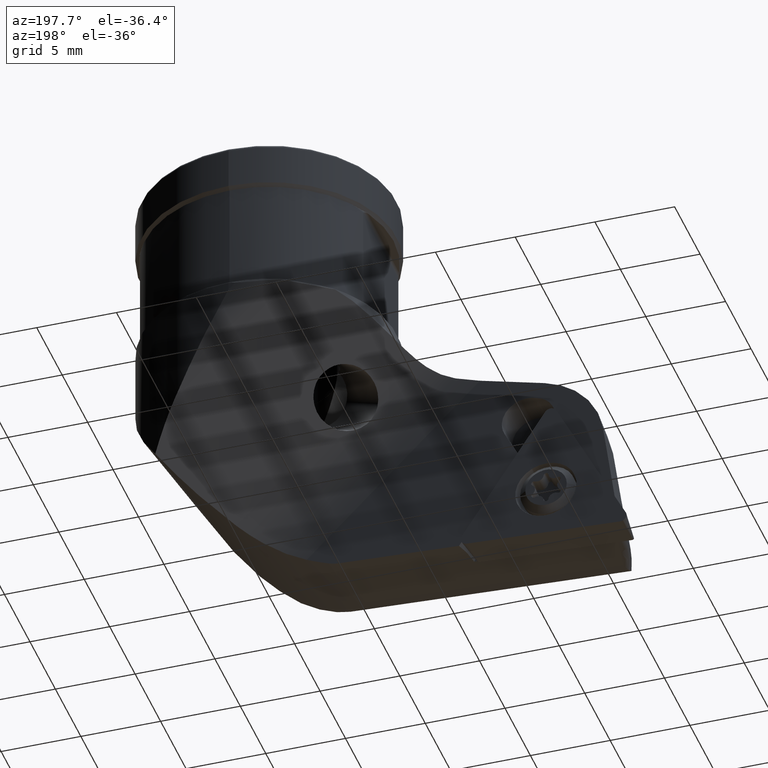
[diagram: clean part render]
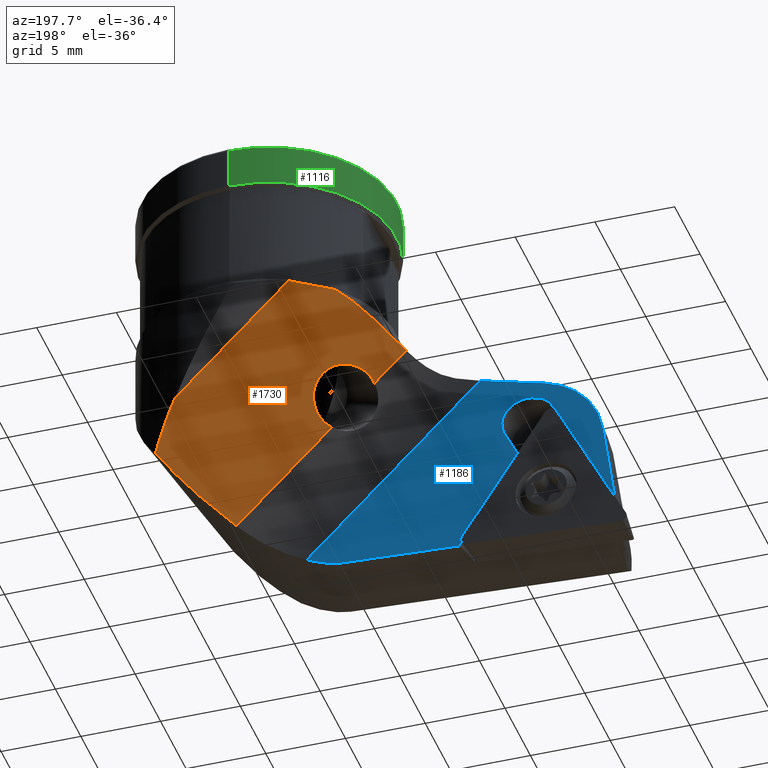
[diagram: same view with three faces highlighted in distinct colors, each labeled with its STEP entity id]
A machine part, auxiliary view with three faces highlighted in distinct colors.
Their STEP definitions:

[orange] entity #1730 — the highlighted planar face has unit normal (0.5, -0.7071, 0.5).
#820=VERTEX_POINT('NONE',#2182);
#854=EDGE_CURVE('NONE',#1704,#950,#2219,.T.);
#918=EDGE_CURVE('NONE',#1294,#1188,#2290,.T.);
#950=VERTEX_POINT('NONE',#2325);
#964=EDGE_CURVE('NONE',#820,#1304,#2340,.T.);
#1112=VERTEX_POINT('NONE',#2503);
#1188=VERTEX_POINT('NONE',#2588);
#1230=EDGE_CURVE('NONE',#1188,#1112,#2632,.T.);
#1294=VERTEX_POINT('NONE',#2699);
#1304=VERTEX_POINT('NONE',#2711);
#1316=EDGE_CURVE('NONE',#1304,#1642,#2724,.F.);
#1498=EDGE_CURVE('NONE',#950,#1528,#2925,.T.);
#1516=EDGE_CURVE('NONE',#1704,#820,#2944,.F.);
#1524=EDGE_CURVE('NONE',#1642,#1294,#2954,.F.);
#1528=VERTEX_POINT('NONE',#2958);
#1642=VERTEX_POINT('NONE',#3084);
#1704=VERTEX_POINT('NONE',#3152);
#1730=ADVANCED_FACE('NONE',(#3178),#3179,.F.);
#1942=EDGE_CURVE('NONE',#1528,#1112,#3411,.F.);
#2182=CARTESIAN_POINT('',(-7.06967052858153,1.45735931288074,-14.4270898869831));
#2219=B_SPLINE_CURVE_WITH_KNOTS('',3,(#3842,#3843,#3844,#3845,#3846,#3847,#3848,#3849,#3850,#3851,#3852,#3853,#3854,#3855,#3856,#3857,#3858,#3859,#3860,#3861),.UNSPECIFIED.,.F.,.F.,(4,2,2,2,2,2,2,2,2,4),(65.4229489903034,67.4327504356294,68.99945963606,69.9009318936082,70.8024041511565,71.490980823442,72.1795574957274,73.3606437714883,73.9511869093688,74.5417300472492),.UNSPECIFIED.);
#2290=ELLIPSE('',#4030,26.8747794973603,18.8595471869717);
#2325=CARTESIAN_POINT('',(-5.86805815178063,5.43745285288258,-9.99999999999994));
#2340=ELLIPSE('',#4115,2.01180231808344,2.0);
#2503=CARTESIAN_POINT('',(3.64510583720193,7.12132034355964,-17.1318157464279));
#2588=CARTESIAN_POINT('',(5.20100894154422,6.07861053119683,-20.1623332090332));
#2632=ELLIPSE('',#5239,15.9999999999999,8.0);
#2699=CARTESIAN_POINT('',(1.58683098823262,1.45735931288074,-23.0835914037973));
#2711=CARTESIAN_POINT('',(-5.30124889370051,3.12243949869506,-13.8407325406468));
#2724=ELLIPSE('',#5378,2.01180231808344,2.0);
#2925=B_SPLINE_CURVE_WITH_KNOTS('',3,(#6127,#6128,#6129,#6130),.UNSPECIFIED.,.F.,.F.,(4,4),(0.0,1.0),.UNSPECIFIED.);
#2944=LINE('',#6156,#6157);
#2954=LINE('',#6168,#6169);
#2958=CARTESIAN_POINT('',(-3.48670990922596,7.12132034355963,-10.0));
#3084=CARTESIAN_POINT('',(-4.38493828708281,1.45735931288074,-17.1118221284819));
#3152=CARTESIAN_POINT('',(-9.05321237803977,1.45735931288074,-12.4435480375249));
#3178=FACE_OUTER_BOUND('',#7010,.T.);
#3179=PLANE('',#7011);
#3411=LINE('',#7379,#7380);
#3842=CARTESIAN_POINT('',(-10.383141903396,-0.19448304017857,-13.4496763707674));
#3843=CARTESIAN_POINT('',(-9.93441048857037,0.314005965214961,-13.1792957378479));
#3844=CARTESIAN_POINT('',(-9.52526087179147,0.833559424524431,-12.8536858060935));
#3845=CARTESIAN_POINT('',(-8.88747764583295,1.6754813474926,-12.3008116301312));
#3846=CARTESIAN_POINT('',(-8.56322171617996,2.1184768091129,-11.998577369891));
#3847=CARTESIAN_POINT('',(-8.13665676202135,2.70003035806783,-11.6027014078714));
#3848=CARTESIAN_POINT('',(-7.96497703572257,2.93367151079703,-11.4439626472521));
#3849=CARTESIAN_POINT('',(-7.61566685607914,3.40063454037405,-11.1328873773408));
#3850=CARTESIAN_POINT('',(-7.43773282882626,3.63394356441308,-10.9808726185737));
#3851=CARTESIAN_POINT('',(-7.14392532556971,4.00754867526958,-10.7463227070851));
#3852=CARTESIAN_POINT('',(-7.00105471576019,4.18523126918362,-10.6379121827837));
#3853=CARTESIAN_POINT('',(-6.70544271456577,4.53909502579057,-10.4330852601523));
#3854=CARTESIAN_POINT('',(-6.55250835407092,4.7152489301808,-10.3369003799935));
#3855=CARTESIAN_POINT('',(-6.16081598442486,5.14744280250935,-10.117378313818));
#3856=CARTESIAN_POINT('',(-5.87333033859738,5.44326434074188,-9.98650912823499));
#3857=CARTESIAN_POINT('',(-5.40837565402224,5.86661229454606,-9.85275939493737));
#3858=CARTESIAN_POINT('',(-5.24781182098396,6.00445683995575,-9.81838160235811));
#3859=CARTESIAN_POINT('',(-4.92316954768279,6.26585873362661,-9.77334577239995));
#3860=CARTESIAN_POINT('',(-4.75908232326074,6.38940852638197,-9.76270720427899));
#3861=CARTESIAN_POINT('',(-4.59835683893751,6.50305860625642,-9.76270720427898));
#4030=AXIS2_PLACEMENT_3D('',#7877,#7878,#7879);
#4115=AXIS2_PLACEMENT_3D('',#7938,#7939,#7940);
#5239=AXIS2_PLACEMENT_3D('',#8297,#8298,#8299);
#5378=AXIS2_PLACEMENT_3D('',#8399,#8400,#8401);
#6127=CARTESIAN_POINT('',(-5.86805815178062,5.43745285288258,-9.99999999999994));
#6128=CARTESIAN_POINT('',(-5.0742754042624,5.99874201644161,-9.99999999999994));
#6129=CARTESIAN_POINT('',(-4.28049265674418,6.56003118000064,-9.99999999999993));
#6130=CARTESIAN_POINT('',(-3.48670990922595,7.12132034355963,-10.0));
#6156=CARTESIAN_POINT('',(-21.9483802088309,1.45735931288073,0.451619793266256));
#6157=VECTOR('',#8643,1.0);
#6168=CARTESIAN_POINT('',(-21.9483802088309,1.45735931288073,0.451619793266256));
#6169=VECTOR('',#8660,1.0);
#7010=EDGE_LOOP('',(#8904,#8905,#8906,#8907,#8908,#8909,#8910,#8911,#8912));
#7011=AXIS2_PLACEMENT_3D('',#8913,#8914,#8915);
#7379=CARTESIAN_POINT('',(-17.9433549556615,7.12132034355963,4.4566450464356));
#7380=VECTOR('',#9198,1.0);
#7877=CARTESIAN_POINT('',(-8.3500960000271,5.77153897931829,-7.04549302074738));
#7878=DIRECTION('',(0.500000000000004,-0.707106781186544,0.500000000000001));
#7879=DIRECTION('',(-0.499999999999998,-0.707106781186551,-0.499999999999997));
#7938=CARTESIAN_POINT('',(-5.4077280050254,1.91298578254682,-15.4446792777613));
#7939=DIRECTION('',(-0.500000000000004,0.707106781186544,-0.500000000000002));
#7940=DIRECTION('',(0.0431105605954569,-0.556311967471248,-0.829854489903751));
#8297=CARTESIAN_POINT('',(-2.88499570811593E-015,0.0,-23.5577777210913));
#8298=DIRECTION('',(0.500000000000003,-0.707106781186544,0.500000000000001));
#8299=DIRECTION('',(0.288675134594816,-0.408248290463863,-0.866025403784438));
#8399=CARTESIAN_POINT('',(-5.4077280050254,1.91298578254682,-15.4446792777613));
#8400=DIRECTION('',(0.500000000000004,-0.707106781186544,0.500000000000002));
#8401=DIRECTION('',(0.0431105605954569,-0.556311967471248,-0.829854489903751));
#8643=DIRECTION('',(-0.707106781186546,0.0,0.707106781186549));
#8660=DIRECTION('',(-0.707106781186546,0.0,0.707106781186549));
#8904=ORIENTED_EDGE('',*,*,#964,.F.);
#8905=ORIENTED_EDGE('',*,*,#1516,.F.);
#8906=ORIENTED_EDGE('',*,*,#854,.T.);
#8907=ORIENTED_EDGE('',*,*,#1498,.T.);
#8908=ORIENTED_EDGE('',*,*,#1942,.T.);
#8909=ORIENTED_EDGE('',*,*,#1230,.F.);
#8910=ORIENTED_EDGE('',*,*,#918,.F.);
#8911=ORIENTED_EDGE('',*,*,#1524,.F.);
#8912=ORIENTED_EDGE('',*,*,#1316,.F.);
#8913=CARTESIAN_POINT('',(-17.9433549556615,7.12132034355963,4.4566450464356));
#8914=DIRECTION('',(0.500000000000004,-0.707106781186544,0.500000000000001));
#8915=DIRECTION('',(9.99919924347895E-017,0.577350269189629,0.816496580927724));
#9198=DIRECTION('',(-0.707106781186546,0.0,0.707106781186549));

[blue] entity #1186 — the highlighted planar face has unit normal (0, -1, 0).
#714=VERTEX_POINT('NONE',#2057);
#736=VERTEX_POINT('NONE',#2084);
#830=EDGE_CURVE('NONE',#1264,#1260,#2192,.F.);
#1082=VERTEX_POINT('NONE',#2469);
#1090=VERTEX_POINT('NONE',#2477);
#1092=EDGE_CURVE('NONE',#714,#1082,#2479,.T.);
#1170=EDGE_CURVE('NONE',#1352,#1442,#2568,.F.);
#1186=ADVANCED_FACE('NONE',(#2585),#2586,.F.);
#1226=VERTEX_POINT('NONE',#2628);
#1260=VERTEX_POINT('NONE',#2665);
#1264=VERTEX_POINT('NONE',#2669);
#1270=EDGE_CURVE('NONE',#1808,#1260,#2675,.F.);
#1330=EDGE_CURVE('NONE',#1444,#1264,#2741,.F.);
#1346=VERTEX_POINT('NONE',#2759);
#1352=VERTEX_POINT('NONE',#2765);
#1390=EDGE_CURVE('NONE',#1714,#714,#2805,.T.);
#1426=EDGE_CURVE('NONE',#1714,#736,#2845,.T.);
#1442=VERTEX_POINT('NONE',#2862);
#1444=VERTEX_POINT('NONE',#2864);
#1650=EDGE_CURVE('NONE',#1442,#1226,#3093,.F.);
#1652=EDGE_CURVE('NONE',#1082,#1808,#3095,.T.);
#1714=VERTEX_POINT('NONE',#3162);
#1750=EDGE_CURVE('NONE',#1346,#1090,#3202,.T.);
#1754=EDGE_CURVE('NONE',#1090,#1444,#3206,.T.);
#1808=VERTEX_POINT('NONE',#3262);
#1828=EDGE_CURVE('NONE',#736,#1226,#3283,.T.);
#1924=EDGE_CURVE('NONE',#1346,#1352,#3390,.T.);
#2057=CARTESIAN_POINT('',(-20.8319974406731,-0.299999999999998,-19.5927098795729));
#2084=CARTESIAN_POINT('',(-17.608805249528,-0.299999999999998,-17.1709894729409));
#2192=CIRCLE('',#3809,18.2578475778961);
#2469=CARTESIAN_POINT('',(-17.174292353558,-0.299999999999998,-15.4589462529294));
#2477=CARTESIAN_POINT('',(-11.807383655355,-0.299999999999998,-26.3340427739643));
#2479=B_SPLINE_CURVE_WITH_KNOTS('',3,(#4457,#4458,#4459,#4460,#4461,#4462,#4463,#4464,#4465,#4466,#4467,#4468,#4469,#4470,#4471,#4472,#4473,#4474,#4475,#4476,#4477),.UNSPECIFIED.,.F.,.F.,(4,3,2,2,2,2,2,2,2,4),(-0.925565106840551,0.0,0.925565106840552,1.85113021368111,2.77674424137051,3.70235826905992,4.6280498648772,5.55374146069449,6.47953834156512,7.40533522243574),.UNSPECIFIED.);
#2568=CIRCLE('',#5133,1.6);
#2585=FACE_OUTER_BOUND('',#5155,.T.);
#2586=PLANE('',#5156);
#2628=CARTESIAN_POINT('',(-16.730695611416,-0.29999999999999,-16.4770089581132));
#2665=CARTESIAN_POINT('',(-2.26361039966606,-0.299999999999998,-25.2331500158986));
#2669=CARTESIAN_POINT('',(-3.61508453936539,-0.299999999999998,-25.8004212165007));
#2675=LINE('',#5303,#5304);
#2741=CIRCLE('',#5397,2.2578475778961);
#2759=CARTESIAN_POINT('',(-15.5974202940364,-0.299999999999999,-20.4978981424851));
#2765=CARTESIAN_POINT('',(-14.6662187388245,-0.299999999999999,-18.6703121874834));
#2805=(B_SPLINE_CURVE(2,(#5533,#5534,#5535),.UNSPECIFIED.,.F.,.F.)B_SPLINE_CURVE_WITH_KNOTS((3,3),(1.24803061727078,6.69191219224671),.UNSPECIFIED.)RATIONAL_B_SPLINE_CURVE((1.00009069111249,1.00025190638441,1.00009399040905))BOUNDED_CURVE()REPRESENTATION_ITEM('')GEOMETRIC_REPRESENTATION_ITEM()CURVE());
#2845=LINE('',#5983,#5984);
#2862=CARTESIAN_POINT('',(-14.4940219219185,-0.299999999999998,-17.8601898579114));
#2864=CARTESIAN_POINT('',(-4.28650530044589,-0.299999999999998,-25.9398902411257));
#3093=CIRCLE('',#6426,1.6);
#3095=(B_SPLINE_CURVE(2,(#6430,#6431,#6432),.UNSPECIFIED.,.F.,.F.)B_SPLINE_CURVE_WITH_KNOTS((3,3),(3.49019006085362,7.47289147636556),.UNSPECIFIED.)RATIONAL_B_SPLINE_CURVE((1.04374411464476,1.06038251879029,1.05803260594008))BOUNDED_CURVE()REPRESENTATION_ITEM('')GEOMETRIC_REPRESENTATION_ITEM()CURVE());
#3162=CARTESIAN_POINT('',(-21.5897836453605,-0.299999999999998,-24.9840994947908));
#3202=LINE('',#7039,#7040);
#3206=LINE('',#7047,#7048);
#3262=CARTESIAN_POINT('',(-13.1231088430176,-0.299999999999998,-14.3736515725471));
#3283=CIRCLE('',#7187,1.34022681307225);
#3390=LINE('',#7343,#7344);
#3809=AXIS2_PLACEMENT_3D('',#7750,#7751,#7752);
#4457=CARTESIAN_POINT('',(-20.7845865037745,-0.299999999999998,-21.2639871195866));
#4458=CARTESIAN_POINT('',(-20.8502206325946,-0.299999999999998,-20.9340424165861));
#4459=CARTESIAN_POINT('',(-20.8806621306256,-0.299999999999998,-20.5970970866533));
#4460=CARTESIAN_POINT('',(-20.8806621306256,-0.299999999999998,-20.2885753843732));
#4461=CARTESIAN_POINT('',(-20.8806621306256,-0.299999999999998,-19.980053682093));
#4462=CARTESIAN_POINT('',(-20.8502206325946,-0.299999999999998,-19.6431083521602));
#4463=CARTESIAN_POINT('',(-20.7189523749544,-0.299999999999998,-18.9832189461592));
#4464=CARTESIAN_POINT('',(-20.6181256687959,-0.299999999999998,-18.6602748594583));
#4465=CARTESIAN_POINT('',(-20.3819756950211,-0.299999999999998,-18.0901907626314));
#4466=CARTESIAN_POINT('',(-20.2248932645032,-0.299999999999998,-17.7905309372783));
#4467=CARTESIAN_POINT('',(-19.8510574647829,-0.299999999999998,-17.2310844951948));
#4468=CARTESIAN_POINT('',(-19.6343042290091,-0.299999999999998,-16.9712977893042));
#4469=CARTESIAN_POINT('',(-19.1979328946835,-0.299999999999998,-16.534955283819));
#4470=CARTESIAN_POINT('',(-18.9381086168627,-0.299999999999998,-16.3182032341208));
#4471=CARTESIAN_POINT('',(-18.3785889268299,-0.299999999999998,-15.9443745149487));
#4472=CARTESIAN_POINT('',(-18.0788936526702,-0.299999999999998,-15.7872976388481));
#4473=CARTESIAN_POINT('',(-17.5087032659303,-0.299999999999998,-15.5511348218639));
#4474=CARTESIAN_POINT('',(-17.1856737525012,-0.299999999999998,-15.4502975972627));
#4475=CARTESIAN_POINT('',(-16.5256133832145,-0.299999999999998,-15.3190180121364));
#4476=CARTESIAN_POINT('',(-16.1885825805081,-0.299999999999998,-15.2885753843732));
#4477=CARTESIAN_POINT('',(-15.8799836202179,-0.299999999999998,-15.2885753843732));
#5133=AXIS2_PLACEMENT_3D('',#8212,#8213,#8214);
#5155=EDGE_LOOP('',(#8243,#8244,#8245,#8246,#8247,#8248,#8249,#8250,#8251,#8252,#8253,#8254,#8255));
#5156=AXIS2_PLACEMENT_3D('',#8256,#8257,#8258);
#5303=CARTESIAN_POINT('',(-24.9483802088309,-0.299999999999998,-2.54838020673375));
#5304=VECTOR('',#8346,1.0);
#5397=AXIS2_PLACEMENT_3D('',#8428,#8429,#8430);
#5533=CARTESIAN_POINT('',(-21.5897836453605,-0.299999999999998,-24.9840994947906));
#5534=CARTESIAN_POINT('',(-21.2041236765413,-0.299999999999998,-22.2402511131254));
#5535=CARTESIAN_POINT('',(-20.831997440673,-0.299999999999998,-19.5927098795728));
#5983=CARTESIAN_POINT('',(-15.62451509233,-0.299999999999998,-13.2766007644538));
#5984=VECTOR('',#8532,1.0);
#6426=AXIS2_PLACEMENT_3D('',#8825,#8826,#8827);
#6430=CARTESIAN_POINT('',(-17.1742923535571,-0.299999999999998,-15.4589462529291));
#6431=CARTESIAN_POINT('',(-14.8779589350529,-0.299999999999998,-14.8437394197376));
#6432=CARTESIAN_POINT('',(-13.1231088430176,-0.299999999999998,-14.3736515725471));
#7039=CARTESIAN_POINT('',(-18.1988093607228,-0.299999999999998,-16.4921102614444));
#7040=VECTOR('',#8949,1.0);
#7047=CARTESIAN_POINT('',(-24.3278761271283,-0.299999999999998,-26.9902139799399));
#7048=VECTOR('',#8951,1.0);
#7187=AXIS2_PLACEMENT_3D('',#9017,#9018,#9019);
#7343=CARTESIAN_POINT('',(-12.4651041492403,-0.299999999999999,-14.3503815701449));
#7344=VECTOR('',#9164,1.0);
#7750=CARTESIAN_POINT('',(-10.0,-0.299999999999998,-8.69539702072026));
#7751=DIRECTION('',(-1.36901197918159E-017,1.0,-1.36901197918158E-017));
#7752=DIRECTION('',(1.0,1.36901197918159E-017,-1.22464679914735E-016));
#8212=CARTESIAN_POINT('',(-16.0918291775258,-0.299999999999999,-17.9439273879001));
#8213=DIRECTION('',(-1.36901197918159E-017,1.0,-1.36901197918158E-017));
#8214=DIRECTION('',(0.998629534754574,1.43878434688205E-017,0.0523359562429369));
#8243=ORIENTED_EDGE('',*,*,#1652,.T.);
#8244=ORIENTED_EDGE('',*,*,#1270,.T.);
#8245=ORIENTED_EDGE('',*,*,#830,.F.);
#8246=ORIENTED_EDGE('',*,*,#1330,.F.);
#8247=ORIENTED_EDGE('',*,*,#1754,.F.);
#8248=ORIENTED_EDGE('',*,*,#1750,.F.);
#8249=ORIENTED_EDGE('',*,*,#1924,.T.);
#8250=ORIENTED_EDGE('',*,*,#1170,.T.);
#8251=ORIENTED_EDGE('',*,*,#1650,.T.);
#8252=ORIENTED_EDGE('',*,*,#1828,.F.);
#8253=ORIENTED_EDGE('',*,*,#1426,.F.);
#8254=ORIENTED_EDGE('',*,*,#1390,.T.);
#8255=ORIENTED_EDGE('',*,*,#1092,.T.);
#8256=CARTESIAN_POINT('',(-24.9483802088309,-0.299999999999998,-2.54838020673375));
#8257=DIRECTION('',(1.36901197918159E-017,-1.0,1.36901197918158E-017));
#8258=DIRECTION('',(1.22464679914735E-016,1.36901197918158E-017,1.0));
#8346=DIRECTION('',(-0.707106781186546,0.0,0.707106781186549));
#8428=CARTESIAN_POINT('',(-4.40467191248588,-0.299999999999998,-23.6851369648646));
#8429=DIRECTION('',(-1.36901197918159E-017,1.0,-1.36901197918158E-017));
#8430=DIRECTION('',(-1.0,-1.36901197918159E-017,1.22464679914735E-016));
#8532=DIRECTION('',(0.453990499739553,1.8413170377209E-017,0.891006524188365));
#8825=CARTESIAN_POINT('',(-16.0918291775258,-0.299999999999999,-17.9439273879001));
#8826=DIRECTION('',(-1.36901197918159E-017,1.0,-1.36901197918158E-017));
#8827=DIRECTION('',(0.998629534754574,1.43878434688205E-017,0.0523359562429369));
#8949=DIRECTION('',(0.544639035015017,-4.02532690838857E-018,-0.83867056794543));
#8951=DIRECTION('',(0.998629534754574,1.43878434688205E-017,0.0523359562429375));
#9017=CARTESIAN_POINT('',(-16.4146544151884,-0.299999999999998,-17.7794397135719));
#9018=DIRECTION('',(-1.36901197918159E-017,1.0,-1.36901197918158E-017));
#9019=DIRECTION('',(-0.998629534754574,-1.43878434688205E-017,-0.0523359562429368));
#9164=DIRECTION('',(0.453990499739553,1.8413170377209E-017,0.891006524188365));

[green] entity #1116 — the highlighted cylindrical surface (partial cylindrical patch) has radius 8 mm, axis along (0, 0, 1).
#798=EDGE_CURVE('NONE',#1914,#1198,#2158,.T.);
#1116=ADVANCED_FACE('NONE',(#2507),#2508,.T.);
#1172=EDGE_CURVE('NONE',#1198,#1870,#2570,.T.);
#1198=VERTEX_POINT('NONE',#2599);
#1288=EDGE_CURVE('NONE',#2006,#1914,#2693,.F.);
#1826=EDGE_CURVE('NONE',#2006,#1870,#3281,.T.);
#1870=VERTEX_POINT('NONE',#3328);
#1914=VERTEX_POINT('NONE',#3378);
#2006=VERTEX_POINT('NONE',#3478);
#2158=LINE('',#3763,#3764);
#2507=FACE_OUTER_BOUND('',#4509,.T.);
#2508=CYLINDRICAL_SURFACE('',#4510,8.0);
#2570=CIRCLE('',#5136,8.0);
#2599=CARTESIAN_POINT('',(-2.44929359829471E-017,-8.0,-0.2));
#2693=CIRCLE('',#5334,8.0);
#3281=LINE('',#7183,#7184);
#3328=CARTESIAN_POINT('',(9.55224503334935E-016,8.0,-0.2));
#3378=CARTESIAN_POINT('',(-3.42901103761259E-016,-8.0,-2.8));
#3478=CARTESIAN_POINT('',(6.36816335556623E-016,8.0,-2.8));
#3763=CARTESIAN_POINT('',(1.26060226389638E-016,-8.0,1.02935986504359));
#3764=VECTOR('',#7723,1000.0);
#4509=EDGE_LOOP('',(#8129,#8130,#8131,#8132));
#4510=AXIS2_PLACEMENT_3D('',#8133,#8134,#8135);
#5136=AXIS2_PLACEMENT_3D('',#8215,#8216,#8217);
#5334=AXIS2_PLACEMENT_3D('',#8355,#8356,#8357);
#7183=CARTESIAN_POINT('',(1.10577766570752E-015,8.0,1.02935986504359));
#7184=VECTOR('',#9016,1000.0);
#7723=DIRECTION('',(1.22464679914735E-016,-0.0,1.0));
#8129=ORIENTED_EDGE('',*,*,#1826,.F.);
#8130=ORIENTED_EDGE('',*,*,#1288,.T.);
#8131=ORIENTED_EDGE('',*,*,#798,.T.);
#8132=ORIENTED_EDGE('',*,*,#1172,.T.);
#8133=CARTESIAN_POINT('',(1.26060226389638E-016,0.0,1.02935986504359));
#8134=DIRECTION('',(1.22464679914735E-016,0.0,1.0));
#8135=DIRECTION('',(0.0,-1.0,0.0));
#8215=CARTESIAN_POINT('',(-2.44929359829471E-017,0.0,-0.2));
#8216=DIRECTION('',(-1.22464679914735E-016,-0.0,-1.0));
#8217=DIRECTION('',(0.0,-1.0,0.0));
#8355=CARTESIAN_POINT('',(-3.42901103761259E-016,0.0,-2.8));
#8356=DIRECTION('',(-1.22464679914735E-016,-0.0,-1.0));
#8357=DIRECTION('',(0.0,-1.0,0.0));
#9016=DIRECTION('',(1.22464679914735E-016,-0.0,1.0));